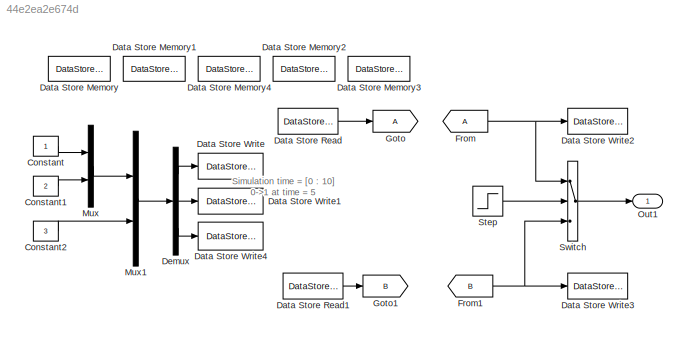
MODEL slx_44e2ea2e674d
KIND model
CONFIG AbsTol = auto
CONFIG FixedStep = 1
CONFIG MaxStep = auto
CONFIG MinStep = auto
CONFIG RelTol = 1e-3
CONFIG SampleTimeConstraint = Unconstrained
CONFIG Solver = FixedStepDiscrete
CONFIG SolverMode = Auto
CONFIG SolverName = FixedStepDiscrete
CONFIG StartTime = 0.0
CONFIG StopTime = 10.0
BLOCK [Constant] Constant
BLOCK [Constant] Constant1
  Value = 2
BLOCK [Constant] Constant2
  Value = 3
BLOCK [DataStoreMemory] Data Store Memory
  ReadBeforeWriteMsg = warning
  WriteAfterReadMsg = warning
  WriteAfterWriteMsg = warning
BLOCK [DataStoreMemory] Data Store Memory1
  DataStoreName = B
  ReadBeforeWriteMsg = warning
  WriteAfterReadMsg = warning
  WriteAfterWriteMsg = warning
BLOCK [DataStoreMemory] Data Store Memory2
  DataStoreName = VA
  ReadBeforeWriteMsg = warning
  WriteAfterReadMsg = warning
  WriteAfterWriteMsg = warning
BLOCK [DataStoreMemory] Data Store Memory3
  DataStoreName = VB
  ReadBeforeWriteMsg = warning
  WriteAfterReadMsg = warning
  WriteAfterWriteMsg = warning
BLOCK [DataStoreMemory] Data Store Memory4
  DataStoreName = C
  ReadBeforeWriteMsg = warning
  WriteAfterReadMsg = warning
  WriteAfterWriteMsg = warning
BLOCK [DataStoreRead] Data Store Read
  Ports = [0, 1]
BLOCK [DataStoreRead] Data Store Read1
  DataStoreName = B
  Ports = [0, 1]
BLOCK [DataStoreWrite] Data Store Write
  Ports = [1]
BLOCK [DataStoreWrite] Data Store Write1
  DataStoreName = B
  Ports = [1]
BLOCK [DataStoreWrite] Data Store Write2
  DataStoreName = VA
  Ports = [1]
BLOCK [DataStoreWrite] Data Store Write3
  DataStoreName = VB
  Ports = [1]
BLOCK [DataStoreWrite] Data Store Write4
  DataStoreName = C
  Ports = [1]
BLOCK [Demux] Demux
  DisplayOption = bar
  Outputs = 3
  Ports = [1, 3]
BLOCK [From] From
BLOCK [From] From1
  GotoTag = B
BLOCK [Goto] Goto
BLOCK [Goto] Goto1
  GotoTag = B
BLOCK [Mux] Mux
  DisplayOption = bar
  Inputs = 2
  Ports = [2, 1]
BLOCK [Mux] Mux1
  DisplayOption = bar
  Inputs = 2
  Ports = [2, 1]
BLOCK [Outport] Out1
  IconDisplay = Port number
BLOCK [Step] Step
  Time = 5
BLOCK [Switch] Switch
  Criteria = u2 > Threshold
  InputSameDT = off
  SaturateOnIntegerOverflow = off
ANNOTATION (root): Simulation time = [0 : 10] 0->1 at time = 5
LINE Constant1:1 -> Mux:2
LINE Constant2:1 -> Mux1:2
LINE Constant:1 -> Mux:1
LINE Data Store Read1:1 -> Goto1:1
LINE Data Store Read:1 -> Goto:1
LINE Demux:1 -> Data Store Write:1
LINE Demux:2 -> Data Store Write1:1
LINE Demux:3 -> Data Store Write4:1
NET From1:1 -> Data Store Write3:1, Switch:3
NET From:1 -> Data Store Write2:1, Switch:1
LINE Mux1:1 -> Demux:1
LINE Mux:1 -> Mux1:1
LINE Step:1 -> Switch:2
LINE Switch:1 -> Out1:1
note: NET lines group one-source signal fan-out (src -> all destinations, sorted); 1:1 wires keep LINE
